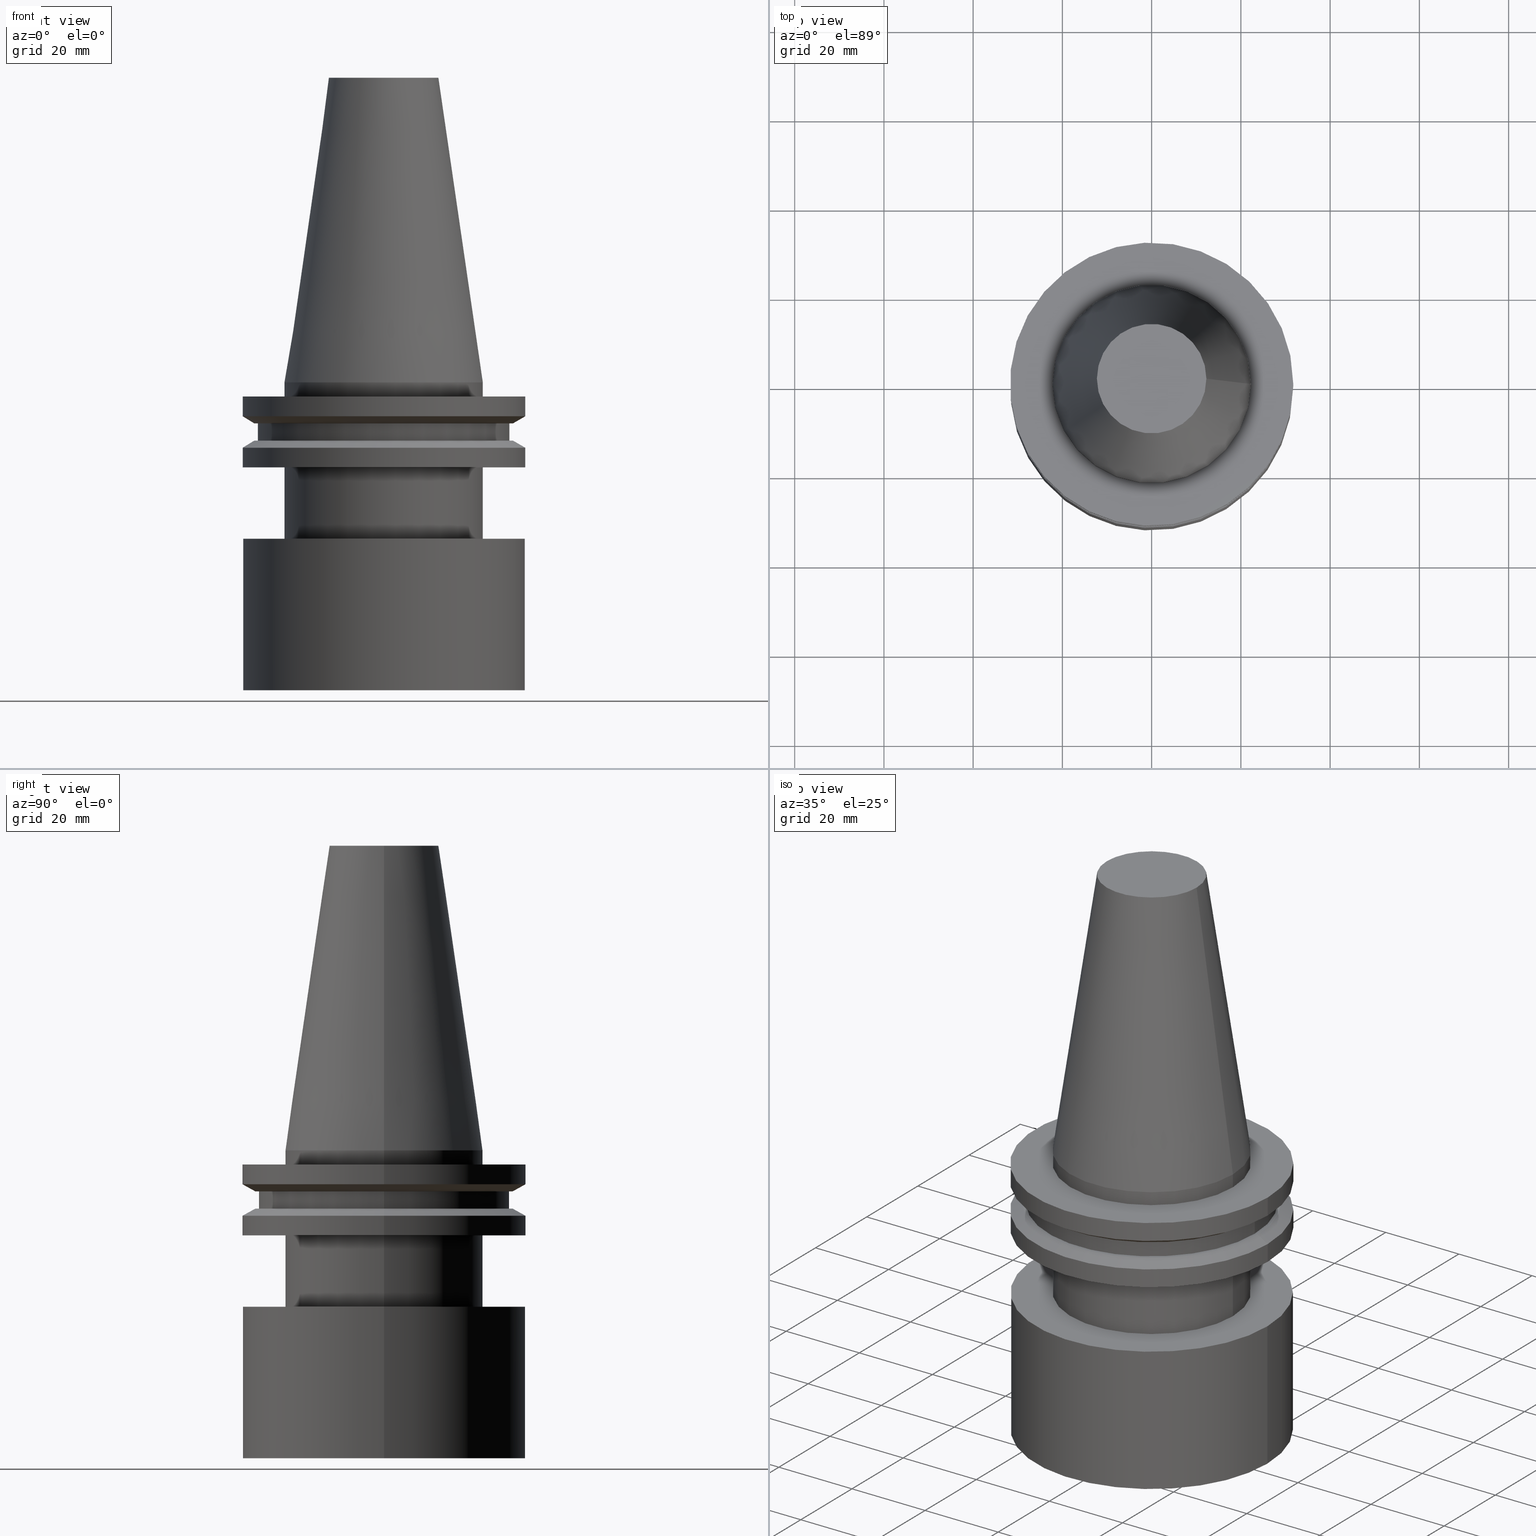
[diagram: canonical four-view strip — front | top / right | iso, engineering-drawing reading convention]
A machine part, canonical four-view strip (front | top / right | iso — engineering-drawing reading convention). The complete STEP part file that produces these views, byte-faithful:
ISO-10303-21;
HEADER;
FILE_DESCRIPTION (( 'STEP AP203' ),
    '1' );
FILE_NAME ('11_326_462.stp',
    '2022-03-09T14:22:12',
    ( '' ),
    ( '' ),
    'SwSTEP 2.0',
    'SolidWorks 2021',
    '' );
FILE_SCHEMA (( 'CONFIG_CONTROL_DESIGN' ));
ENDSEC;

DATA;
#1 = DIRECTION ( 'NONE',  ( -0.000000000000000000, -0.000000000000000000, 1.000000000000000000 ) ) ;
#2 = EDGE_LOOP ( 'NONE', ( #271 ) ) ;
#3 = CARTESIAN_POINT ( 'NONE',  ( 0.000000000000000000, 0.000000000000000000, -13.05499999999999794 ) ) ;
#4 = CIRCLE ( 'NONE', #322, 31.75000000000000000 ) ;
#5 = APPLICATION_CONTEXT ( 'configuration controlled 3d designs of mechanical parts and assemblies' ) ;
#6 = EDGE_LOOP ( 'NONE', ( #62 ) ) ;
#7 = EDGE_LOOP ( 'NONE', ( #149 ) ) ;
#8 = CARTESIAN_POINT ( 'NONE',  ( 22.22500000000000142, 0.000000000000000000, -3.174999999999997158 ) ) ;
#9 = EDGE_LOOP ( 'NONE', ( #32 ) ) ;
#10 = APPROVAL_STATUS ( 'not_yet_approved' ) ;
#11 = ADVANCED_FACE ( 'NONE', ( #67, #194 ), #246, .F. ) ;
#12 = EDGE_LOOP ( 'NONE', ( #397 ) ) ;
#13 = COORDINATED_UNIVERSAL_TIME_OFFSET ( 6, 0, .BEHIND. ) ;
#14 = CYLINDRICAL_SURFACE ( 'NONE', #23, 31.75000000000000000 ) ;
#15 = DATE_AND_TIME ( #138, #73 ) ;
#16 = EDGE_CURVE ( 'NONE', #187, #187, #314, .T. ) ;
#17 = CONICAL_SURFACE ( 'NONE', #264, 31.75000000000000000, 1.047197551196597853 ) ;
#18 = APPROVAL ( #398, 'UNSPECIFIED' ) ;
#19 = DIRECTION ( 'NONE',  ( -0.000000000000000000, -0.000000000000000000, 1.000000000000000000 ) ) ;
#20 = CARTESIAN_POINT ( 'NONE',  ( 0.000000000000000000, 28.17999999999999972, -13.05499999999999794 ) ) ;
#21 = APPROVAL_ROLE ( '' ) ;
#22 = AXIS2_PLACEMENT_3D ( 'NONE', #331, #19, #86 ) ;
#23 = AXIS2_PLACEMENT_3D ( 'NONE', #396, #362, #208 ) ;
#24 = DIRECTION ( 'NONE',  ( 0.000000000000000000, 0.000000000000000000, -1.000000000000000000 ) ) ;
#25 = CARTESIAN_POINT ( 'NONE',  ( 0.000000000000000000, 31.63500000000000512, -69.00000000000000000 ) ) ;
#26 = ADVANCED_FACE ( 'NONE', ( #347, #188 ), #66, .T. ) ;
#27 = CARTESIAN_POINT ( 'NONE',  ( 31.75000000000000000, 0.000000000000000000, -3.174999999999997158 ) ) ;
#28 = DIRECTION ( 'NONE',  ( -1.000000000000000000, 0.000000000000000000, -0.000000000000000000 ) ) ;
#29 = CARTESIAN_POINT ( 'NONE',  ( 0.000000000000000000, 0.000000000000000000, -69.00000000000000000 ) ) ;
#30 = EDGE_LOOP ( 'NONE', ( #316 ) ) ;
#31 = FACE_OUTER_BOUND ( 'NONE', #132, .T. ) ;
#32 = ORIENTED_EDGE ( 'NONE', *, *, #332, .F. ) ;
#33 = CARTESIAN_POINT ( 'NONE',  ( 0.000000000000000000, 0.000000000000000000, -19.04999999999999716 ) ) ;
#34 =( GEOMETRIC_REPRESENTATION_CONTEXT ( 3 ) GLOBAL_UNCERTAINTY_ASSIGNED_CONTEXT ( ( #371 ) ) GLOBAL_UNIT_ASSIGNED_CONTEXT ( ( #356, #41, #68 ) ) REPRESENTATION_CONTEXT ( 'NONE', 'WORKASPACE' ) );
#35 = ORIENTED_EDGE ( 'NONE', *, *, #16, .F. ) ;
#36 = ORIENTED_EDGE ( 'NONE', *, *, #376, .T. ) ;
#37 = EDGE_LOOP ( 'NONE', ( #164 ) ) ;
#38 = FACE_OUTER_BOUND ( 'NONE', #221, .T. ) ;
#39 = AXIS2_PLACEMENT_3D ( 'NONE', #252, #103, #294 ) ;
#40 = EDGE_CURVE ( 'NONE', #212, #212, #203, .T. ) ;
#41 =( NAMED_UNIT ( * ) PLANE_ANGLE_UNIT ( ) SI_UNIT ( $, .RADIAN. ) );
#42 = CIRCLE ( 'NONE', #334, 22.22500000000000142 ) ;
#43 = ORGANIZATION ( 'UNSPECIFIED', 'UNSPECIFIED', '' ) ;
#44 = PERSON_AND_ORGANIZATION ( #237, #43 ) ;
#45 = FACE_OUTER_BOUND ( 'NONE', #37, .T. ) ;
#46 = ADVANCED_FACE ( 'NONE', ( #342, #84 ), #292, .F. ) ;
#47 = DIRECTION ( 'NONE',  ( -0.000000000000000000, -0.000000000000000000, 1.000000000000000000 ) ) ;
#48 = FACE_BOUND ( 'NONE', #59, .T. ) ;
#49 = EDGE_LOOP ( 'NONE', ( #318 ) ) ;
#50 = PERSON_AND_ORGANIZATION ( #237, #43 ) ;
#51 = DIRECTION ( 'NONE',  ( 1.000000000000000000, 0.000000000000000000, 0.000000000000000000 ) ) ;
#52 = CARTESIAN_POINT ( 'NONE',  ( 0.000000000000000000, 12.27178102086201150, 68.25000000000000000 ) ) ;
#53 = PRODUCT_RELATED_PRODUCT_CATEGORY ( 'detail', '', ( #370 ) ) ;
#54 = EDGE_LOOP ( 'NONE', ( #345 ) ) ;
#55 = CARTESIAN_POINT ( 'NONE',  ( 0.000000000000000000, 0.000000000000000000, -19.04999999999999716 ) ) ;
#56 = CARTESIAN_POINT ( 'NONE',  ( 0.000000000000000000, 0.000000000000000000, -14.65472339340266572 ) ) ;
#57 = EDGE_CURVE ( 'NONE', #153, #153, #4, .T. ) ;
#58 = AXIS2_PLACEMENT_3D ( 'NONE', #289, #388, #107 ) ;
#59 = EDGE_LOOP ( 'NONE', ( #136 ) ) ;
#60 = DIRECTION ( 'NONE',  ( -0.000000000000000000, -0.000000000000000000, 1.000000000000000000 ) ) ;
#61 = CC_DESIGN_PERSON_AND_ORGANIZATION_ASSIGNMENT ( #163, #288, ( #370 ) ) ;
#62 = ORIENTED_EDGE ( 'NONE', *, *, #320, .T. ) ;
#63 = DIRECTION ( 'NONE',  ( 1.000000000000000000, 0.000000000000000000, 0.000000000000000000 ) ) ;
#64 = CARTESIAN_POINT ( 'NONE',  ( 0.000000000000000000, 0.000000000000000000, 0.000000000000000000 ) ) ;
#65 = VERTEX_POINT ( 'NONE', #101 ) ;
#66 = CONICAL_SURFACE ( 'NONE', #341, 22.22500000000000142, 0.1448138465474119174 ) ;
#67 = FACE_BOUND ( 'NONE', #12, .T. ) ;
#68 =( NAMED_UNIT ( * ) SI_UNIT ( $, .STERADIAN. ) SOLID_ANGLE_UNIT ( ) );
#69 = DIRECTION ( 'NONE',  ( -1.000000000000000000, 0.000000000000000000, 0.000000000000000000 ) ) ;
#70 = CARTESIAN_POINT ( 'NONE',  ( 0.000000000000000000, 0.000000000000000000, -14.65472339340266572 ) ) ;
#71 = CALENDAR_DATE ( 2022, 9, 3 ) ;
#72 = AXIS2_PLACEMENT_3D ( 'NONE', #25, #117, #196 ) ;
#73 = LOCAL_TIME ( 8, 22, 12.00000000000000000, #13 ) ;
#74 = AXIS2_PLACEMENT_3D ( 'NONE', #33, #380, #126 ) ;
#75 = VERTEX_POINT ( 'NONE', #389 ) ;
#76 = CC_DESIGN_PERSON_AND_ORGANIZATION_ASSIGNMENT ( #44, #111, ( #184 ) ) ;
#77 = PERSON_AND_ORGANIZATION_ROLE ( 'creator' ) ;
#78 = CARTESIAN_POINT ( 'NONE',  ( 0.000000000000000000, 0.000000000000000000, -13.05499999999999794 ) ) ;
#79 = CIRCLE ( 'NONE', #122, 12.27178102086201150 ) ;
#80 = ADVANCED_FACE ( 'NONE', ( #202, #168 ), #14, .T. ) ;
#81 = PERSON_AND_ORGANIZATION ( #237, #43 ) ;
#82 = DIRECTION ( 'NONE',  ( 0.000000000000000000, -0.000000000000000000, 1.000000000000000000 ) ) ;
#83 = PERSON_AND_ORGANIZATION ( #237, #43 ) ;
#84 = FACE_BOUND ( 'NONE', #224, .T. ) ;
#85 = ORIENTED_EDGE ( 'NONE', *, *, #228, .F. ) ;
#86 = DIRECTION ( 'NONE',  ( 1.000000000000000000, 0.000000000000000000, 0.000000000000000000 ) ) ;
#87 = APPLICATION_CONTEXT ( 'configuration controlled 3d designs of mechanical parts and assemblies' ) ;
#88 = DESIGN_CONTEXT ( 'detailed design', #87, 'design' ) ;
#89 = AXIS2_PLACEMENT_3D ( 'NONE', #55, #245, #158 ) ;
#90 = CARTESIAN_POINT ( 'NONE',  ( 31.63500000000000512, 0.000000000000000000, -35.04999999999999716 ) ) ;
#91 = CC_DESIGN_DATE_AND_TIME_ASSIGNMENT ( #15, #262, ( #249 ) ) ;
#92 = ORIENTED_EDGE ( 'NONE', *, *, #137, .F. ) ;
#93 = DIRECTION ( 'NONE',  ( -0.000000000000000000, -0.000000000000000000, 1.000000000000000000 ) ) ;
#94 = PLANE ( 'NONE',  #238 ) ;
#95 = DIRECTION ( 'NONE',  ( 1.000000000000000000, 0.000000000000000000, 0.000000000000000000 ) ) ;
#96 = AXIS2_PLACEMENT_3D ( 'NONE', #230, #304, #151 ) ;
#97 = SECURITY_CLASSIFICATION ( '', '', #295 ) ;
#98 = EDGE_LOOP ( 'NONE', ( #102 ) ) ;
#99 = CARTESIAN_POINT ( 'NONE',  ( 0.000000000000000000, 0.000000000000000000, -9.204999999999991189 ) ) ;
#100 = EDGE_LOOP ( 'NONE', ( #366 ) ) ;
#101 = CARTESIAN_POINT ( 'NONE',  ( 28.97919780457008088, 0.000000000000000000, -13.05499999999999794 ) ) ;
#102 = ORIENTED_EDGE ( 'NONE', *, *, #358, .T. ) ;
#103 = DIRECTION ( 'NONE',  ( 0.000000000000000000, 0.000000000000000000, 1.000000000000000000 ) ) ;
#104 = CLOSED_SHELL ( 'NONE', ( #392, #338, #213 ) ) ;
#105 = DIRECTION ( 'NONE',  ( -1.000000000000000000, 0.000000000000000000, -0.000000000000000000 ) ) ;
#106 = APPROVAL_DATE_TIME ( #387, #177 ) ;
#107 = DIRECTION ( 'NONE',  ( 1.000000000000000000, 0.000000000000000000, 0.000000000000000000 ) ) ;
#108 = CARTESIAN_POINT ( 'NONE',  ( 22.22500000000000142, 0.000000000000000000, -19.04999999999999716 ) ) ;
#109 = CARTESIAN_POINT ( 'NONE',  ( 31.63500000000000512, 0.000000000000000000, -69.00000000000000000 ) ) ;
#110 = AXIS2_PLACEMENT_3D ( 'NONE', #20, #24, #210 ) ;
#111 = PERSON_AND_ORGANIZATION_ROLE ( 'design_supplier' ) ;
#112 = CYLINDRICAL_SURFACE ( 'NONE', #183, 28.17999999999999972 ) ;
#113 = APPROVAL_DATE_TIME ( #205, #18 ) ;
#114 = DIRECTION ( 'NONE',  ( 1.000000000000000000, 0.000000000000000000, 0.000000000000000000 ) ) ;
#115 = AXIS2_PLACEMENT_3D ( 'NONE', #123, #1, #185 ) ;
#116 = PERSON_AND_ORGANIZATION_ROLE ( 'classification_officer' ) ;
#117 = DIRECTION ( 'NONE',  ( 0.000000000000000000, -0.000000000000000000, 1.000000000000000000 ) ) ;
#118 = EDGE_LOOP ( 'NONE', ( #35 ) ) ;
#119 = ADVANCED_BREP_SHAPE_REPRESENTATION ( '11_326_462', ( #364, #222, #39 ), #34 ) ;
#120 = CARTESIAN_POINT ( 'NONE',  ( 0.000000000000000000, 0.000000000000000000, 68.25000000000000000 ) ) ;
#121 = DIRECTION ( 'NONE',  ( -1.000000000000000000, 0.000000000000000000, 0.000000000000000000 ) ) ;
#122 = AXIS2_PLACEMENT_3D ( 'NONE', #145, #267, #321 ) ;
#123 = CARTESIAN_POINT ( 'NONE',  ( 0.000000000000000000, 0.000000000000000000, 68.25000000000000000 ) ) ;
#124 = EDGE_CURVE ( 'NONE', #65, #65, #377, .T. ) ;
#125 = FACE_OUTER_BOUND ( 'NONE', #219, .T. ) ;
#126 = DIRECTION ( 'NONE',  ( 1.000000000000000000, 0.000000000000000000, 0.000000000000000000 ) ) ;
#127 = EDGE_LOOP ( 'NONE', ( #209 ) ) ;
#128 = CIRCLE ( 'NONE', #307, 31.63500000000000512 ) ;
#129 = DIRECTION ( 'NONE',  ( -0.000000000000000000, -0.000000000000000000, 1.000000000000000000 ) ) ;
#130 = CIRCLE ( 'NONE', #89, 22.22500000000000142 ) ;
#131 = ORIENTED_EDGE ( 'NONE', *, *, #57, .T. ) ;
#132 = EDGE_LOOP ( 'NONE', ( #131 ) ) ;
#133 = EDGE_LOOP ( 'NONE', ( #157 ) ) ;
#134 = VERTEX_POINT ( 'NONE', #140 ) ;
#135 = AXIS2_PLACEMENT_3D ( 'NONE', #52, #310, #28 ) ;
#136 = ORIENTED_EDGE ( 'NONE', *, *, #320, .F. ) ;
#137 = EDGE_CURVE ( 'NONE', #348, #348, #225, .T. ) ;
#138 = CALENDAR_DATE ( 2022, 9, 3 ) ;
#139 = CARTESIAN_POINT ( 'NONE',  ( 0.000000000000000000, 22.22500000000000142, -35.04999999999999716 ) ) ;
#140 = CARTESIAN_POINT ( 'NONE',  ( 28.17999999999999972, 0.000000000000000000, -9.204999999999991189 ) ) ;
#141 = AXIS2_PLACEMENT_3D ( 'NONE', #155, #243, #280 ) ;
#142 = ADVANCED_FACE ( 'NONE', ( #395 ), #330, .F. ) ;
#143 = AXIS2_PLACEMENT_3D ( 'NONE', #306, #60, #161 ) ;
#144 = CALENDAR_DATE ( 2022, 9, 3 ) ;
#145 = CARTESIAN_POINT ( 'NONE',  ( 0.000000000000000000, 0.000000000000000000, 68.25000000000000000 ) ) ;
#146 = FACE_OUTER_BOUND ( 'NONE', #166, .T. ) ;
#147 = COORDINATED_UNIVERSAL_TIME_OFFSET ( 6, 0, .BEHIND. ) ;
#148 = CARTESIAN_POINT ( 'NONE',  ( 0.000000000000000000, 28.97919780457007732, -9.204999999999996518 ) ) ;
#149 = ORIENTED_EDGE ( 'NONE', *, *, #40, .F. ) ;
#150 = CC_DESIGN_PERSON_AND_ORGANIZATION_ASSIGNMENT ( #83, #77, ( #184 ) ) ;
#151 = DIRECTION ( 'NONE',  ( 1.000000000000000000, 0.000000000000000000, 0.000000000000000000 ) ) ;
#152 = ORIENTED_EDGE ( 'NONE', *, *, #40, .T. ) ;
#153 = VERTEX_POINT ( 'NONE', #274 ) ;
#154 = CONICAL_SURFACE ( 'NONE', #393, 28.97919780457007732, 1.047197551196598297 ) ;
#155 = CARTESIAN_POINT ( 'NONE',  ( 0.000000000000000000, 0.000000000000000000, -3.174999999999997158 ) ) ;
#156 = FACE_OUTER_BOUND ( 'NONE', #100, .T. ) ;
#157 = ORIENTED_EDGE ( 'NONE', *, *, #394, .T. ) ;
#158 = DIRECTION ( 'NONE',  ( 1.000000000000000000, 0.000000000000000000, 0.000000000000000000 ) ) ;
#159 = EDGE_LOOP ( 'NONE', ( #85 ) ) ;
#160 = ADVANCED_FACE ( 'NONE', ( #48, #45 ), #175, .F. ) ;
#161 = DIRECTION ( 'NONE',  ( 1.000000000000000000, 0.000000000000000000, 0.000000000000000000 ) ) ;
#162 = EDGE_LOOP ( 'NONE', ( #383 ) ) ;
#163 = PERSON_AND_ORGANIZATION ( #237, #43 ) ;
#164 = ORIENTED_EDGE ( 'NONE', *, *, #124, .T. ) ;
#165 = APPLICATION_PROTOCOL_DEFINITION ( 'international standard', 'config_control_design', 1994, #5 ) ;
#166 = EDGE_LOOP ( 'NONE', ( #309 ) ) ;
#167 = PERSON_AND_ORGANIZATION ( #237, #43 ) ;
#168 = FACE_OUTER_BOUND ( 'NONE', #133, .T. ) ;
#169 = ADVANCED_FACE ( 'NONE', ( #261, #174 ), #298, .T. ) ;
#170 = EDGE_CURVE ( 'NONE', #75, #75, #79, .T. ) ;
#171 = ADVANCED_FACE ( 'NONE', ( #355, #300 ), #176, .F. ) ;
#172 = CLOSED_SHELL ( 'NONE', ( #26, #266, #142, #169, #46, #319, #293, #160, #236, #171, #381, #80, #11, #218 ) ) ;
#173 = CALENDAR_DATE ( 2022, 9, 3 ) ;
#174 = FACE_OUTER_BOUND ( 'NONE', #162, .T. ) ;
#175 = PLANE ( 'NONE',  #110 ) ;
#176 = PLANE ( 'NONE',  #282 ) ;
#177 = APPROVAL ( #10, 'UNSPECIFIED' ) ;
#178 = ORIENTED_EDGE ( 'NONE', *, *, #57, .F. ) ;
#179 = DIRECTION ( 'NONE',  ( 1.000000000000000000, 0.000000000000000000, 0.000000000000000000 ) ) ;
#180 = EDGE_LOOP ( 'NONE', ( #152 ) ) ;
#181 = FACE_OUTER_BOUND ( 'NONE', #118, .T. ) ;
#182 = FACE_OUTER_BOUND ( 'NONE', #353, .T. ) ;
#183 = AXIS2_PLACEMENT_3D ( 'NONE', #233, #335, #217 ) ;
#184 = PRODUCT_DEFINITION_FORMATION_WITH_SPECIFIED_SOURCE ( 'ANY', '', #370, .NOT_KNOWN. ) ;
#185 = DIRECTION ( 'NONE',  ( 1.000000000000000000, 0.000000000000000000, 0.000000000000000000 ) ) ;
#186 = ORIENTED_EDGE ( 'NONE', *, *, #394, .F. ) ;
#187 = VERTEX_POINT ( 'NONE', #90 ) ;
#188 = FACE_OUTER_BOUND ( 'NONE', #2, .T. ) ;
#189 = FACE_BOUND ( 'NONE', #49, .T. ) ;
#190 = DIRECTION ( 'NONE',  ( 0.000000000000000000, 0.000000000000000000, -1.000000000000000000 ) ) ;
#191 = CC_DESIGN_PERSON_AND_ORGANIZATION_ASSIGNMENT ( #329, #116, ( #97 ) ) ;
#192 = CIRCLE ( 'NONE', #141, 22.22500000000000142 ) ;
#193 = CARTESIAN_POINT ( 'NONE',  ( 28.17999999999999972, 0.000000000000000000, -13.05499999999999794 ) ) ;
#194 = FACE_OUTER_BOUND ( 'NONE', #180, .T. ) ;
#195 = PERSON_AND_ORGANIZATION_ROLE ( 'creator' ) ;
#196 = DIRECTION ( 'NONE',  ( 1.000000000000000000, 0.000000000000000000, 0.000000000000000000 ) ) ;
#197 = CARTESIAN_POINT ( 'NONE',  ( 31.75000000000000000, 0.000000000000000000, -7.605276606597335842 ) ) ;
#198 = AXIS2_PLACEMENT_3D ( 'NONE', #265, #327, #51 ) ;
#199 = VERTEX_POINT ( 'NONE', #197 ) ;
#200 = CC_DESIGN_PERSON_AND_ORGANIZATION_ASSIGNMENT ( #229, #195, ( #249 ) ) ;
#201 = DATE_AND_TIME ( #173, #386 ) ;
#202 = FACE_OUTER_BOUND ( 'NONE', #7, .T. ) ;
#203 = CIRCLE ( 'NONE', #58, 31.75000000000000000 ) ;
#204 = LOCAL_TIME ( 8, 22, 12.00000000000000000, #301 ) ;
#205 = DATE_AND_TIME ( #144, #204 ) ;
#206 = DIRECTION ( 'NONE',  ( 1.000000000000000000, 0.000000000000000000, 0.000000000000000000 ) ) ;
#207 = APPROVAL_ROLE ( '' ) ;
#208 = DIRECTION ( 'NONE',  ( 1.000000000000000000, 0.000000000000000000, 0.000000000000000000 ) ) ;
#209 = ORIENTED_EDGE ( 'NONE', *, *, #302, .T. ) ;
#210 = DIRECTION ( 'NONE',  ( -1.000000000000000000, 0.000000000000000000, -0.000000000000000000 ) ) ;
#211 = CIRCLE ( 'NONE', #143, 31.75000000000000000 ) ;
#212 = VERTEX_POINT ( 'NONE', #27 ) ;
#213 = ADVANCED_FACE ( 'NONE', ( #146 ), #399, .F. ) ;
#214 = CYLINDRICAL_SURFACE ( 'NONE', #115, 31.75000000000000000 ) ;
#215 = FACE_OUTER_BOUND ( 'NONE', #273, .T. ) ;
#216 = APPROVAL_PERSON_ORGANIZATION ( #81, #18, #21 ) ;
#217 = DIRECTION ( 'NONE',  ( 1.000000000000000000, 0.000000000000000000, 0.000000000000000000 ) ) ;
#218 = ADVANCED_FACE ( 'NONE', ( #239, #270 ), #365, .T. ) ;
#219 = EDGE_LOOP ( 'NONE', ( #186 ) ) ;
#220 = CYLINDRICAL_SURFACE ( 'NONE', #315, 31.63500000000000512 ) ;
#221 = EDGE_LOOP ( 'NONE', ( #287 ) ) ;
#222 = MANIFOLD_SOLID_BREP ( 'CKB', #104 ) ;
#223 = VERTEX_POINT ( 'NONE', #8 ) ;
#224 = EDGE_LOOP ( 'NONE', ( #279 ) ) ;
#225 = CIRCLE ( 'NONE', #198, 22.22500000000000142 ) ;
#226 = CARTESIAN_POINT ( 'NONE',  ( 22.22500000000000142, 0.000000000000000000, 0.000000000000000000 ) ) ;
#227 = CARTESIAN_POINT ( 'NONE',  ( 0.000000000000000000, 0.000000000000000000, -35.04999999999999716 ) ) ;
#228 = EDGE_CURVE ( 'NONE', #391, #391, #42, .T. ) ;
#229 = PERSON_AND_ORGANIZATION ( #237, #43 ) ;
#230 = CARTESIAN_POINT ( 'NONE',  ( 0.000000000000000000, 31.74999999999999289, -19.04999999999999716 ) ) ;
#231 = VERTEX_POINT ( 'NONE', #193 ) ;
#232 = VERTEX_POINT ( 'NONE', #323 ) ;
#233 = CARTESIAN_POINT ( 'NONE',  ( 0.000000000000000000, 0.000000000000000000, 68.25000000000000000 ) ) ;
#234 = CALENDAR_DATE ( 2022, 9, 3 ) ;
#235 = DIRECTION ( 'NONE',  ( -0.000000000000000000, -0.000000000000000000, 1.000000000000000000 ) ) ;
#236 = ADVANCED_FACE ( 'NONE', ( #38, #272 ), #112, .T. ) ;
#237 = PERSON ( 'UNSPECIFIED', 'UNSPECIFIED', 'UNSPECIFIED', ('UNSPECIFIED'), ('UNSPECIFIED'), ('UNSPECIFIED') ) ;
#238 = AXIS2_PLACEMENT_3D ( 'NONE', #308, #305, #344 ) ;
#239 = FACE_OUTER_BOUND ( 'NONE', #159, .T. ) ;
#240 = DIRECTION ( 'NONE',  ( -0.000000000000000000, -0.000000000000000000, 1.000000000000000000 ) ) ;
#241 = DIRECTION ( 'NONE',  ( 1.000000000000000000, 0.000000000000000000, 0.000000000000000000 ) ) ;
#242 = CC_DESIGN_APPROVAL ( #350, ( #97 ) ) ;
#243 = DIRECTION ( 'NONE',  ( -0.000000000000000000, -0.000000000000000000, 1.000000000000000000 ) ) ;
#244 = DIRECTION ( 'NONE',  ( 1.000000000000000000, 0.000000000000000000, 0.000000000000000000 ) ) ;
#245 = DIRECTION ( 'NONE',  ( -0.000000000000000000, -0.000000000000000000, 1.000000000000000000 ) ) ;
#246 = PLANE ( 'NONE',  #268 ) ;
#247 = AXIS2_PLACEMENT_3D ( 'NONE', #139, #82, #361 ) ;
#248 = CC_DESIGN_APPROVAL ( #177, ( #249 ) ) ;
#249 = PRODUCT_DEFINITION ( 'UNKNOWN', '', #184, #88 ) ;
#250 = CARTESIAN_POINT ( 'NONE',  ( 0.000000000000000000, 0.000000000000000000, 0.000000000000000000 ) ) ;
#251 = ORIENTED_EDGE ( 'NONE', *, *, #332, .T. ) ;
#252 = CARTESIAN_POINT ( 'NONE',  ( 0.000000000000000000, 0.000000000000000000, 0.000000000000000000 ) ) ;
#253 = ORIENTED_EDGE ( 'NONE', *, *, #16, .T. ) ;
#254 = CARTESIAN_POINT ( 'NONE',  ( 28.97919780457007732, 0.000000000000000000, -9.205000000000005400 ) ) ;
#255 = ORIENTED_EDGE ( 'NONE', *, *, #358, .F. ) ;
#256 = AXIS2_PLACEMENT_3D ( 'NONE', #78, #47, #206 ) ;
#257 = COORDINATED_UNIVERSAL_TIME_OFFSET ( 6, 0, .BEHIND. ) ;
#258 = APPROVAL_PERSON_ORGANIZATION ( #167, #177, #290 ) ;
#259 = DIRECTION ( 'NONE',  ( 1.000000000000000000, 0.000000000000000000, 0.000000000000000000 ) ) ;
#260 = CARTESIAN_POINT ( 'NONE',  ( 22.22500000000000142, 0.000000000000000000, -35.04999999999999716 ) ) ;
#261 = FACE_OUTER_BOUND ( 'NONE', #285, .T. ) ;
#262 = DATE_TIME_ROLE ( 'creation_date' ) ;
#263 = CC_DESIGN_DATE_AND_TIME_ASSIGNMENT ( #367, #325, ( #97 ) ) ;
#264 = AXIS2_PLACEMENT_3D ( 'NONE', #56, #369, #121 ) ;
#265 = CARTESIAN_POINT ( 'NONE',  ( 0.000000000000000000, 0.000000000000000000, -35.04999999999999716 ) ) ;
#266 = ADVANCED_FACE ( 'NONE', ( #346 ), #339, .F. ) ;
#267 = DIRECTION ( 'NONE',  ( -0.000000000000000000, -0.000000000000000000, 1.000000000000000000 ) ) ;
#268 = AXIS2_PLACEMENT_3D ( 'NONE', #382, #385, #105 ) ;
#269 = COORDINATED_UNIVERSAL_TIME_OFFSET ( 6, 0, .BEHIND. ) ;
#270 = FACE_OUTER_BOUND ( 'NONE', #127, .T. ) ;
#271 = ORIENTED_EDGE ( 'NONE', *, *, #228, .T. ) ;
#272 = FACE_OUTER_BOUND ( 'NONE', #6, .T. ) ;
#273 = EDGE_LOOP ( 'NONE', ( #178 ) ) ;
#274 = CARTESIAN_POINT ( 'NONE',  ( 31.75000000000000000, 0.000000000000000000, -14.65472339340266572 ) ) ;
#275 = CIRCLE ( 'NONE', #74, 31.74999999999999289 ) ;
#276 = CIRCLE ( 'NONE', #379, 28.97919780457007732 ) ;
#277 = CARTESIAN_POINT ( 'NONE',  ( 0.000000000000000000, 0.000000000000000000, -9.205000000000005400 ) ) ;
#278 = DIRECTION ( 'NONE',  ( -0.000000000000000000, -0.000000000000000000, 1.000000000000000000 ) ) ;
#279 = ORIENTED_EDGE ( 'NONE', *, *, #359, .T. ) ;
#280 = DIRECTION ( 'NONE',  ( 1.000000000000000000, 0.000000000000000000, 0.000000000000000000 ) ) ;
#281 = EDGE_LOOP ( 'NONE', ( #92 ) ) ;
#282 = AXIS2_PLACEMENT_3D ( 'NONE', #148, #303, #179 ) ;
#283 = LOCAL_TIME ( 8, 22, 12.00000000000000000, #147 ) ;
#284 = DIRECTION ( 'NONE',  ( -0.000000000000000000, -0.000000000000000000, 1.000000000000000000 ) ) ;
#285 = EDGE_LOOP ( 'NONE', ( #349 ) ) ;
#286 = EDGE_CURVE ( 'NONE', #324, #324, #128, .T. ) ;
#287 = ORIENTED_EDGE ( 'NONE', *, *, #376, .F. ) ;
#288 = PERSON_AND_ORGANIZATION_ROLE ( 'design_owner' ) ;
#289 = CARTESIAN_POINT ( 'NONE',  ( 0.000000000000000000, 0.000000000000000000, -3.174999999999997158 ) ) ;
#290 = APPROVAL_ROLE ( '' ) ;
#291 = APPROVAL_PERSON_ORGANIZATION ( #50, #350, #207 ) ;
#292 = PLANE ( 'NONE',  #96 ) ;
#293 = ADVANCED_FACE ( 'NONE', ( #189, #31 ), #17, .T. ) ;
#294 = DIRECTION ( 'NONE',  ( 1.000000000000000000, 0.000000000000000000, 0.000000000000000000 ) ) ;
#295 = SECURITY_CLASSIFICATION_LEVEL ( 'unclassified' ) ;
#296 = APPROVAL_DATE_TIME ( #201, #350 ) ;
#297 = AXIS2_PLACEMENT_3D ( 'NONE', #3, #337, #241 ) ;
#298 = CYLINDRICAL_SURFACE ( 'NONE', #22, 22.22500000000000142 ) ;
#299 = SHAPE_DEFINITION_REPRESENTATION ( #340, #119 ) ;
#300 = FACE_BOUND ( 'NONE', #336, .T. ) ;
#301 = COORDINATED_UNIVERSAL_TIME_OFFSET ( 6, 0, .BEHIND. ) ;
#302 = EDGE_CURVE ( 'NONE', #223, #223, #192, .T. ) ;
#303 = DIRECTION ( 'NONE',  ( 0.000000000000000000, -0.000000000000000000, 1.000000000000000000 ) ) ;
#304 = DIRECTION ( 'NONE',  ( 0.000000000000000000, -0.000000000000000000, 1.000000000000000000 ) ) ;
#305 = DIRECTION ( 'NONE',  ( 0.000000000000000000, 0.000000000000000000, -1.000000000000000000 ) ) ;
#306 = CARTESIAN_POINT ( 'NONE',  ( 0.000000000000000000, 0.000000000000000000, -7.605276606597335842 ) ) ;
#307 = AXIS2_PLACEMENT_3D ( 'NONE', #29, #403, #244 ) ;
#308 = CARTESIAN_POINT ( 'NONE',  ( 0.000000000000000000, 0.000000000000000000, -35.04999999999999716 ) ) ;
#309 = ORIENTED_EDGE ( 'NONE', *, *, #286, .F. ) ;
#310 = DIRECTION ( 'NONE',  ( 0.000000000000000000, 0.000000000000000000, -1.000000000000000000 ) ) ;
#311 = EDGE_LOOP ( 'NONE', ( #251 ) ) ;
#312 = FACE_OUTER_BOUND ( 'NONE', #311, .T. ) ;
#313 = EDGE_LOOP ( 'NONE', ( #255 ) ) ;
#314 = CIRCLE ( 'NONE', #326, 31.63500000000000512 ) ;
#315 = AXIS2_PLACEMENT_3D ( 'NONE', #250, #129, #373 ) ;
#316 = ORIENTED_EDGE ( 'NONE', *, *, #170, .T. ) ;
#317 = MECHANICAL_CONTEXT ( 'NONE', #5, 'mechanical' ) ;
#318 = ORIENTED_EDGE ( 'NONE', *, *, #124, .F. ) ;
#319 = ADVANCED_FACE ( 'NONE', ( #215, #312 ), #214, .T. ) ;
#320 = EDGE_CURVE ( 'NONE', #231, #231, #357, .T. ) ;
#321 = DIRECTION ( 'NONE',  ( 1.000000000000000000, 0.000000000000000000, 0.000000000000000000 ) ) ;
#322 = AXIS2_PLACEMENT_3D ( 'NONE', #70, #235, #114 ) ;
#323 = CARTESIAN_POINT ( 'NONE',  ( 31.74999999999999289, 0.000000000000000000, -19.04999999999999716 ) ) ;
#324 = VERTEX_POINT ( 'NONE', #109 ) ;
#325 = DATE_TIME_ROLE ( 'classification_date' ) ;
#326 = AXIS2_PLACEMENT_3D ( 'NONE', #227, #378, #259 ) ;
#327 = DIRECTION ( 'NONE',  ( -0.000000000000000000, -0.000000000000000000, 1.000000000000000000 ) ) ;
#328 = AXIS2_PLACEMENT_3D ( 'NONE', #99, #278, #374 ) ;
#329 = PERSON_AND_ORGANIZATION ( #237, #43 ) ;
#330 = PLANE ( 'NONE',  #247 ) ;
#331 = CARTESIAN_POINT ( 'NONE',  ( 0.000000000000000000, 0.000000000000000000, 68.25000000000000000 ) ) ;
#332 = EDGE_CURVE ( 'NONE', #232, #232, #275, .T. ) ;
#333 = DIRECTION ( 'NONE',  ( 1.000000000000000000, 0.000000000000000000, 0.000000000000000000 ) ) ;
#334 = AXIS2_PLACEMENT_3D ( 'NONE', #368, #400, #333 ) ;
#335 = DIRECTION ( 'NONE',  ( -0.000000000000000000, -0.000000000000000000, 1.000000000000000000 ) ) ;
#336 = EDGE_LOOP ( 'NONE', ( #36 ) ) ;
#337 = DIRECTION ( 'NONE',  ( -0.000000000000000000, -0.000000000000000000, 1.000000000000000000 ) ) ;
#338 = ADVANCED_FACE ( 'NONE', ( #181, #156 ), #220, .T. ) ;
#339 = PLANE ( 'NONE',  #135 ) ;
#340 = PRODUCT_DEFINITION_SHAPE ( 'NONE', 'NONE',  #249 ) ;
#341 = AXIS2_PLACEMENT_3D ( 'NONE', #64, #190, #69 ) ;
#342 = FACE_OUTER_BOUND ( 'NONE', #9, .T. ) ;
#343 = CC_DESIGN_SECURITY_CLASSIFICATION ( #97, ( #184 ) ) ;
#344 = DIRECTION ( 'NONE',  ( -1.000000000000000000, 0.000000000000000000, -0.000000000000000000 ) ) ;
#345 = ORIENTED_EDGE ( 'NONE', *, *, #170, .F. ) ;
#346 = FACE_OUTER_BOUND ( 'NONE', #30, .T. ) ;
#347 = FACE_BOUND ( 'NONE', #54, .T. ) ;
#348 = VERTEX_POINT ( 'NONE', #260 ) ;
#349 = ORIENTED_EDGE ( 'NONE', *, *, #359, .F. ) ;
#350 = APPROVAL ( #360, 'UNSPECIFIED' ) ;
#351 = AXIS2_PLACEMENT_3D ( 'NONE', #120, #240, #390 ) ;
#352 = APPLICATION_PROTOCOL_DEFINITION ( 'international standard', 'config_control_design', 1994, #87 ) ;
#353 = EDGE_LOOP ( 'NONE', ( #253 ) ) ;
#354 = VERTEX_POINT ( 'NONE', #254 ) ;
#355 = FACE_OUTER_BOUND ( 'NONE', #313, .T. ) ;
#356 =( LENGTH_UNIT ( ) NAMED_UNIT ( * ) SI_UNIT ( .MILLI., .METRE. ) );
#357 = CIRCLE ( 'NONE', #297, 28.17999999999999972 ) ;
#358 = EDGE_CURVE ( 'NONE', #354, #354, #276, .T. ) ;
#359 = EDGE_CURVE ( 'NONE', #384, #384, #130, .T. ) ;
#360 = APPROVAL_STATUS ( 'not_yet_approved' ) ;
#361 = DIRECTION ( 'NONE',  ( 1.000000000000000000, 0.000000000000000000, 0.000000000000000000 ) ) ;
#362 = DIRECTION ( 'NONE',  ( -0.000000000000000000, -0.000000000000000000, 1.000000000000000000 ) ) ;
#363 = CC_DESIGN_APPROVAL ( #18, ( #184 ) ) ;
#364 = MANIFOLD_SOLID_BREP ( 'CV40', #172 ) ;
#365 = CYLINDRICAL_SURFACE ( 'NONE', #351, 22.22500000000000142 ) ;
#366 = ORIENTED_EDGE ( 'NONE', *, *, #286, .T. ) ;
#367 = DATE_AND_TIME ( #234, #283 ) ;
#368 = CARTESIAN_POINT ( 'NONE',  ( 0.000000000000000000, 0.000000000000000000, 0.000000000000000000 ) ) ;
#369 = DIRECTION ( 'NONE',  ( 0.000000000000000000, 0.000000000000000000, -1.000000000000000000 ) ) ;
#370 = PRODUCT ( '11_326_462', '11_326_462', '', ( #317 ) ) ;
#371 = UNCERTAINTY_MEASURE_WITH_UNIT (LENGTH_MEASURE( 1.000000000000000082E-05 ), #356, 'distance_accuracy_value', 'NONE');
#372 = LOCAL_TIME ( 8, 22, 12.00000000000000000, #257 ) ;
#373 = DIRECTION ( 'NONE',  ( 1.000000000000000000, 0.000000000000000000, 0.000000000000000000 ) ) ;
#374 = DIRECTION ( 'NONE',  ( 1.000000000000000000, 0.000000000000000000, 0.000000000000000000 ) ) ;
#375 = CARTESIAN_POINT ( 'NONE',  ( 0.000000000000000000, 0.000000000000000000, -9.205000000000005400 ) ) ;
#376 = EDGE_CURVE ( 'NONE', #134, #134, #402, .T. ) ;
#377 = CIRCLE ( 'NONE', #256, 28.97919780457008088 ) ;
#378 = DIRECTION ( 'NONE',  ( -0.000000000000000000, -0.000000000000000000, 1.000000000000000000 ) ) ;
#379 = AXIS2_PLACEMENT_3D ( 'NONE', #277, #93, #63 ) ;
#380 = DIRECTION ( 'NONE',  ( -0.000000000000000000, -0.000000000000000000, 1.000000000000000000 ) ) ;
#381 = ADVANCED_FACE ( 'NONE', ( #125, #401 ), #154, .T. ) ;
#382 = CARTESIAN_POINT ( 'NONE',  ( 0.000000000000000000, 31.75000000000000000, -3.174999999999993605 ) ) ;
#383 = ORIENTED_EDGE ( 'NONE', *, *, #137, .T. ) ;
#384 = VERTEX_POINT ( 'NONE', #108 ) ;
#385 = DIRECTION ( 'NONE',  ( 0.000000000000000000, 0.000000000000000000, -1.000000000000000000 ) ) ;
#386 = LOCAL_TIME ( 8, 22, 12.00000000000000000, #269 ) ;
#387 = DATE_AND_TIME ( #71, #372 ) ;
#388 = DIRECTION ( 'NONE',  ( -0.000000000000000000, -0.000000000000000000, 1.000000000000000000 ) ) ;
#389 = CARTESIAN_POINT ( 'NONE',  ( 12.27178102086201150, 0.000000000000000000, 68.25000000000000000 ) ) ;
#390 = DIRECTION ( 'NONE',  ( 1.000000000000000000, 0.000000000000000000, 0.000000000000000000 ) ) ;
#391 = VERTEX_POINT ( 'NONE', #226 ) ;
#392 = ADVANCED_FACE ( 'NONE', ( #182 ), #94, .F. ) ;
#393 = AXIS2_PLACEMENT_3D ( 'NONE', #375, #284, #95 ) ;
#394 = EDGE_CURVE ( 'NONE', #199, #199, #211, .T. ) ;
#395 = FACE_OUTER_BOUND ( 'NONE', #281, .T. ) ;
#396 = CARTESIAN_POINT ( 'NONE',  ( 0.000000000000000000, 0.000000000000000000, 68.25000000000000000 ) ) ;
#397 = ORIENTED_EDGE ( 'NONE', *, *, #302, .F. ) ;
#398 = APPROVAL_STATUS ( 'not_yet_approved' ) ;
#399 = PLANE ( 'NONE',  #72 ) ;
#400 = DIRECTION ( 'NONE',  ( -0.000000000000000000, -0.000000000000000000, 1.000000000000000000 ) ) ;
#401 = FACE_BOUND ( 'NONE', #98, .T. ) ;
#402 = CIRCLE ( 'NONE', #328, 28.17999999999999972 ) ;
#403 = DIRECTION ( 'NONE',  ( -0.000000000000000000, -0.000000000000000000, 1.000000000000000000 ) ) ;
ENDSEC;
END-ISO-10303-21;
